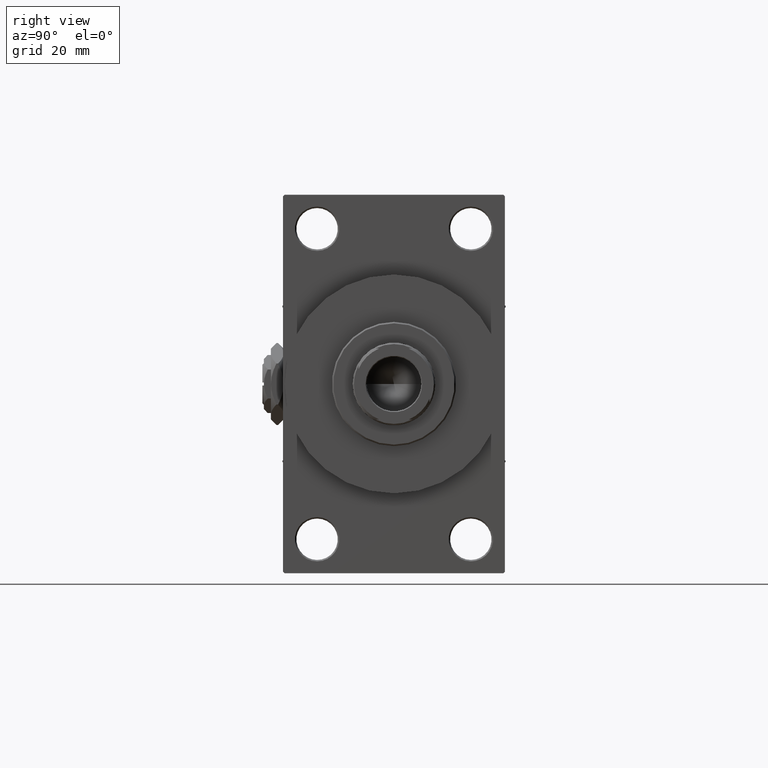
[diagram: clean part render]
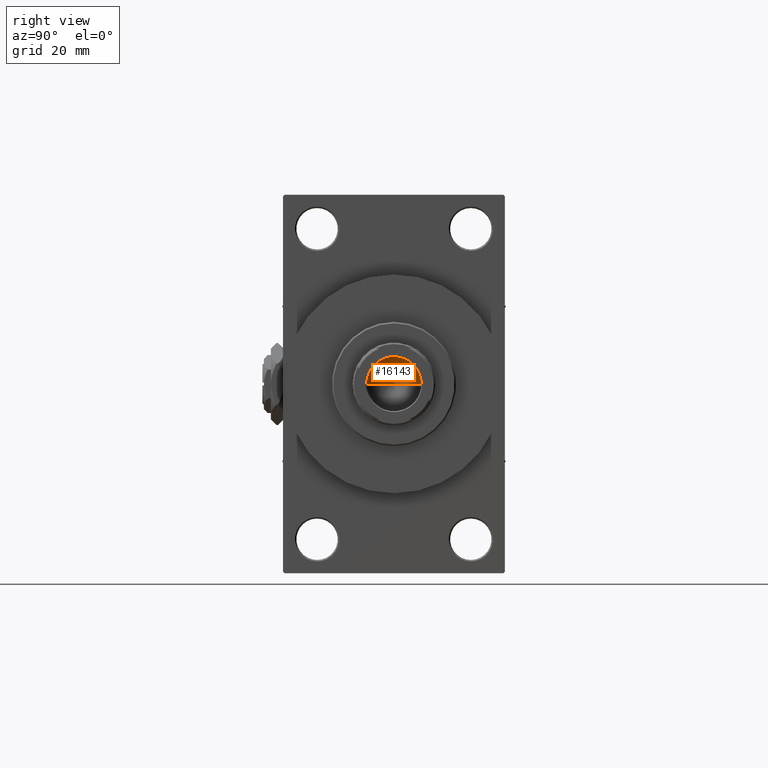
[diagram: same view with one face highlighted and labeled with its STEP entity id]
A machine part, right view. The second image highlights one B-rep face of the part: STEP entity #16143.
In plain terms, the highlighted conical surface has half-angle 59 deg.
Its self-contained STEP definition (entity closure, byte-faithful):
#871 = CONICAL_SURFACE ( 'NONE', #44623, 9.249999999999992895, 1.029744258676653423 ) ;
#2136 = EDGE_CURVE ( 'NONE', #22963, #31270, #32266, .T. ) ;
#5850 = DIRECTION ( 'NONE',  ( -0.8571673007021117785, 1.049727191138617956E-16, 0.5150380749100550437 ) ) ;
#7663 = CIRCLE ( 'NONE', #9228, 9.249999999999992895 ) ;
#7796 = EDGE_LOOP ( 'NONE', ( #28028, #30263, #15776 ) ) ;
#9228 = AXIS2_PLACEMENT_3D ( 'NONE', #14388, #48803, #45054 ) ;
#9396 = LINE ( 'NONE', #38820, #39428 ) ;
#9713 = DIRECTION ( 'NONE',  ( -0.000000000000000000, -0.000000000000000000, 1.000000000000000000 ) ) ;
#9936 = CARTESIAN_POINT ( 'NONE',  ( -9.769621978240258809E-15, 0.000000000000000000, 101.4420392739950785 ) ) ;
#14388 = CARTESIAN_POINT ( 'NONE',  ( 0.000000000000000000, 0.000000000000000000, 107.0000000000000142 ) ) ;
#15776 = ORIENTED_EDGE ( 'NONE', *, *, #31574, .T. ) ;
#16143 = ADVANCED_FACE ( 'NONE', ( #21655 ), #871, .F. ) ;
#19578 = VECTOR ( 'NONE', #5850, 1000.000000000000000 ) ;
#21655 = FACE_OUTER_BOUND ( 'NONE', #7796, .T. ) ;
#22314 = VERTEX_POINT ( 'NONE', #48417 ) ;
#22963 = VERTEX_POINT ( 'NONE', #9936 ) ;
#23853 = DIRECTION ( 'NONE',  ( 0.8571673007021117785, 0.000000000000000000, 0.5150380749100550437 ) ) ;
#24903 = DIRECTION ( 'NONE',  ( 1.000000000000000000, 0.000000000000000000, 0.000000000000000000 ) ) ;
#28028 = ORIENTED_EDGE ( 'NONE', *, *, #33692, .F. ) ;
#29427 = CARTESIAN_POINT ( 'NONE',  ( -9.249999999999992895, 1.132798289211300712E-15, 107.0000000000000142 ) ) ;
#30263 = ORIENTED_EDGE ( 'NONE', *, *, #2136, .T. ) ;
#31270 = VERTEX_POINT ( 'NONE', #29427 ) ;
#31574 = EDGE_CURVE ( 'NONE', #31270, #22314, #7663, .T. ) ;
#32266 = LINE ( 'NONE', #43489, #19578 ) ;
#32627 = CARTESIAN_POINT ( 'NONE',  ( 0.000000000000000000, 0.000000000000000000, 107.0000000000000142 ) ) ;
#33692 = EDGE_CURVE ( 'NONE', #22963, #22314, #9396, .T. ) ;
#38820 = CARTESIAN_POINT ( 'NONE',  ( 9.249999999999992895, 0.000000000000000000, 107.0000000000000142 ) ) ;
#39428 = VECTOR ( 'NONE', #23853, 1000.000000000000000 ) ;
#43489 = CARTESIAN_POINT ( 'NONE',  ( -9.249999999999992895, 1.132798289211300712E-15, 107.0000000000000142 ) ) ;
#44623 = AXIS2_PLACEMENT_3D ( 'NONE', #32627, #9713, #24903 ) ;
#45054 = DIRECTION ( 'NONE',  ( 1.000000000000000000, 0.000000000000000000, 0.000000000000000000 ) ) ;
#48417 = CARTESIAN_POINT ( 'NONE',  ( 9.249999999999992895, 0.000000000000000000, 107.0000000000000142 ) ) ;
#48803 = DIRECTION ( 'NONE',  ( -0.000000000000000000, -0.000000000000000000, 1.000000000000000000 ) ) ;